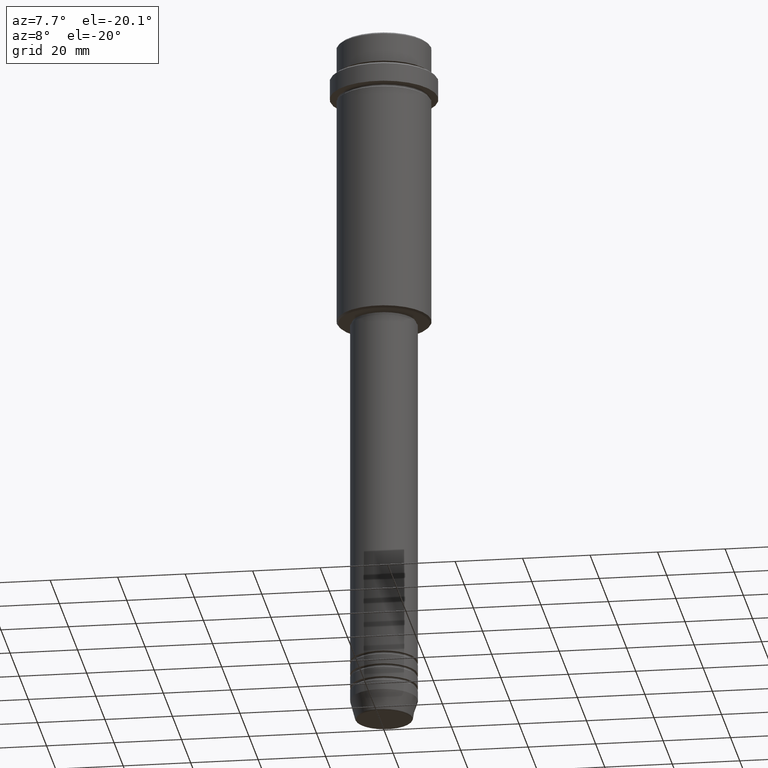
[diagram: clean part render]
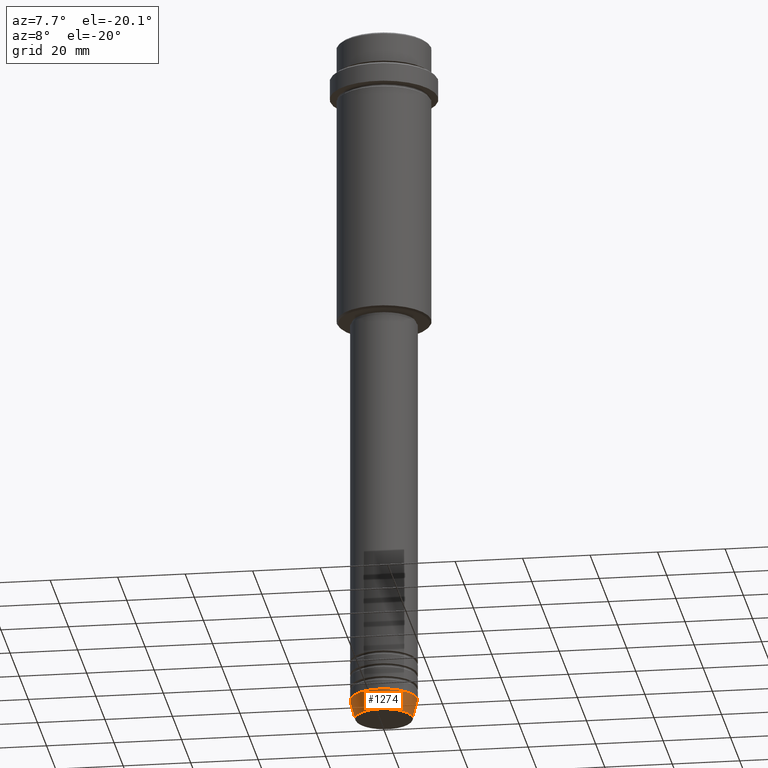
[diagram: same view with one face highlighted and labeled with its STEP entity id]
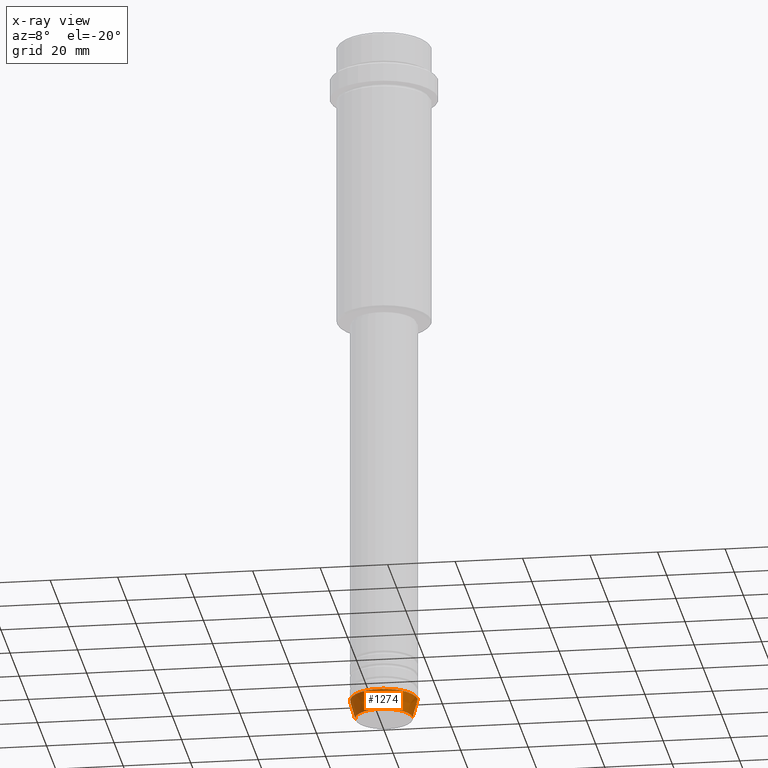
[diagram: x-ray of the same camera — body ghosted, the highlighted face saturated]
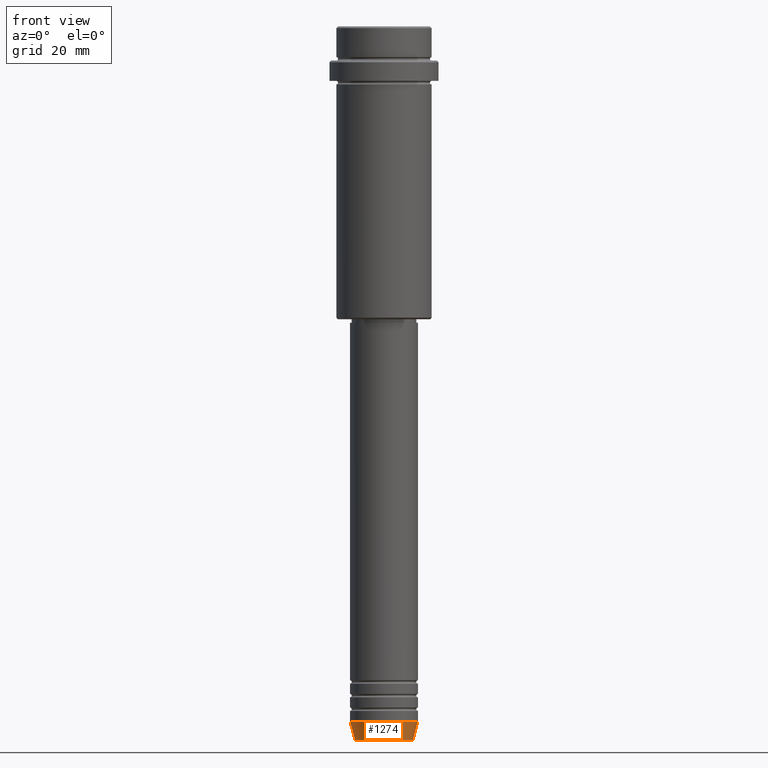
[diagram: same view with one face highlighted and labeled with its STEP entity id]
A machine part, auxiliary view. The second image highlights one B-rep face of the part: STEP entity #1274.
The next image is the same camera in x-ray: the body ghosted, the highlighted face saturated — about 0% of this face is hidden behind the body in this view.
A second angle (front view) of the same face is appended — the face is thin or edge-on in the first view.
In plain terms, the highlighted conical surface has half-angle 15 deg.
Its self-contained STEP definition (entity closure, byte-faithful):
#41 = AXIS2_PLACEMENT_3D ( 'NONE', #505, #73, #388 ) ;
#50 = VERTEX_POINT ( 'NONE', #85 ) ;
#55 = ORIENTED_EDGE ( 'NONE', *, *, #666, .T. ) ;
#73 = DIRECTION ( 'NONE',  ( -0.000000000000000000, -0.000000000000000000, 1.000000000000000000 ) ) ;
#85 = CARTESIAN_POINT ( 'NONE',  ( -10.00000000000000000, 1.224646799147353256E-15, -204.0000000000000284 ) ) ;
#380 = CARTESIAN_POINT ( 'NONE',  ( 0.000000000000000000, 0.000000000000000000, -204.0000000000000284 ) ) ;
#388 = DIRECTION ( 'NONE',  ( 1.000000000000000000, 0.000000000000000000, 0.000000000000000000 ) ) ;
#403 = CARTESIAN_POINT ( 'NONE',  ( -10.00000000000000000, 1.224646799147353256E-15, -204.0000000000000284 ) ) ;
#404 = VERTEX_POINT ( 'NONE', #1068 ) ;
#422 = ORIENTED_EDGE ( 'NONE', *, *, #810, .T. ) ;
#436 = CONICAL_SURFACE ( 'NONE', #1253, 10.00000000000000000, 0.2617993877991498519 ) ;
#473 = ORIENTED_EDGE ( 'NONE', *, *, #1062, .F. ) ;
#505 = CARTESIAN_POINT ( 'NONE',  ( 0.000000000000000000, 0.000000000000000000, -209.6294095225512990 ) ) ;
#511 = FACE_OUTER_BOUND ( 'NONE', #594, .T. ) ;
#515 = DIRECTION ( 'NONE',  ( 1.000000000000000000, 0.000000000000000000, 0.000000000000000000 ) ) ;
#566 = ORIENTED_EDGE ( 'NONE', *, *, #1213, .F. ) ;
#594 = EDGE_LOOP ( 'NONE', ( #566, #422, #55, #473 ) ) ;
#606 = VERTEX_POINT ( 'NONE', #779 ) ;
#613 = DIRECTION ( 'NONE',  ( -0.000000000000000000, -0.000000000000000000, 1.000000000000000000 ) ) ;
#617 = DIRECTION ( 'NONE',  ( 1.000000000000000000, 0.000000000000000000, 0.000000000000000000 ) ) ;
#666 = EDGE_CURVE ( 'NONE', #1122, #404, #929, .T. ) ;
#680 = AXIS2_PLACEMENT_3D ( 'NONE', #380, #613, #515 ) ;
#704 = VECTOR ( 'NONE', #1047, 1000.000000000000114 ) ;
#779 = CARTESIAN_POINT ( 'NONE',  ( -8.491604264568309191, 1.132284198685156387E-15, -209.6294095225512990 ) ) ;
#810 = EDGE_CURVE ( 'NONE', #606, #1122, #1134, .T. ) ;
#822 = CARTESIAN_POINT ( 'NONE',  ( 10.00000000000000000, 0.000000000000000000, -204.0000000000000284 ) ) ;
#929 = LINE ( 'NONE', #822, #704 ) ;
#967 = DIRECTION ( 'NONE',  ( -0.000000000000000000, -0.000000000000000000, 1.000000000000000000 ) ) ;
#1047 = DIRECTION ( 'NONE',  ( 0.2588190451025211281, 0.000000000000000000, 0.9659258262890680902 ) ) ;
#1059 = VECTOR ( 'NONE', #1158, 1000.000000000000114 ) ;
#1062 = EDGE_CURVE ( 'NONE', #50, #404, #1326, .T. ) ;
#1068 = CARTESIAN_POINT ( 'NONE',  ( 10.00000000000000000, 0.000000000000000000, -204.0000000000000284 ) ) ;
#1122 = VERTEX_POINT ( 'NONE', #1162 ) ;
#1134 = CIRCLE ( 'NONE', #41, 8.491604264568309191 ) ;
#1158 = DIRECTION ( 'NONE',  ( -0.2588190451025211281, 3.169619151431769872E-17, 0.9659258262890680902 ) ) ;
#1162 = CARTESIAN_POINT ( 'NONE',  ( 8.491604264568309191, 0.000000000000000000, -209.6294095225512990 ) ) ;
#1166 = LINE ( 'NONE', #403, #1059 ) ;
#1167 = CARTESIAN_POINT ( 'NONE',  ( 0.000000000000000000, 0.000000000000000000, -204.0000000000000284 ) ) ;
#1213 = EDGE_CURVE ( 'NONE', #606, #50, #1166, .T. ) ;
#1253 = AXIS2_PLACEMENT_3D ( 'NONE', #1167, #967, #617 ) ;
#1274 = ADVANCED_FACE ( 'NONE', ( #511 ), #436, .T. ) ;
#1326 = CIRCLE ( 'NONE', #680, 10.00000000000000000 ) ;